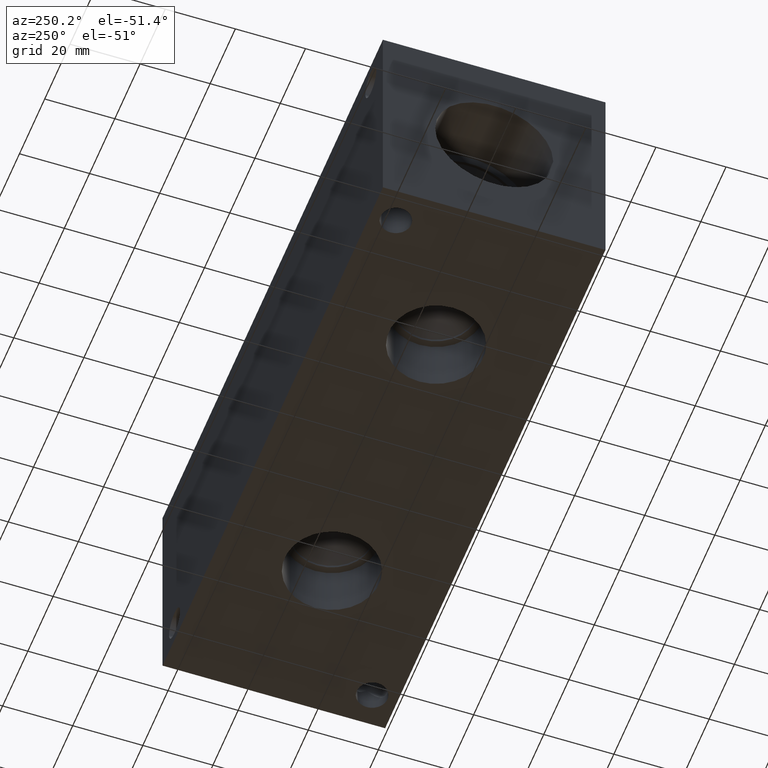
[diagram: clean part render]
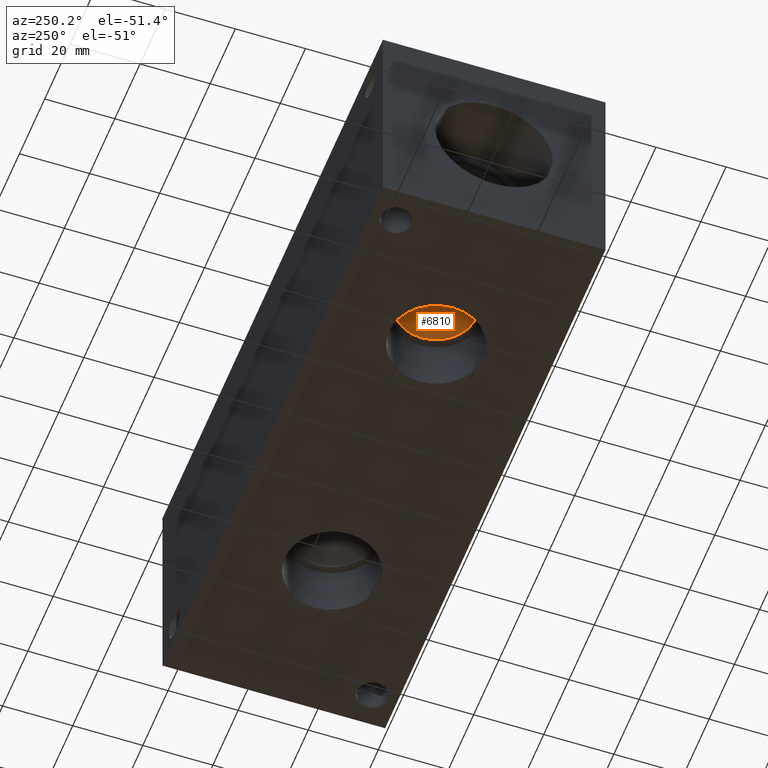
[diagram: same view with one face highlighted and labeled with its STEP entity id]
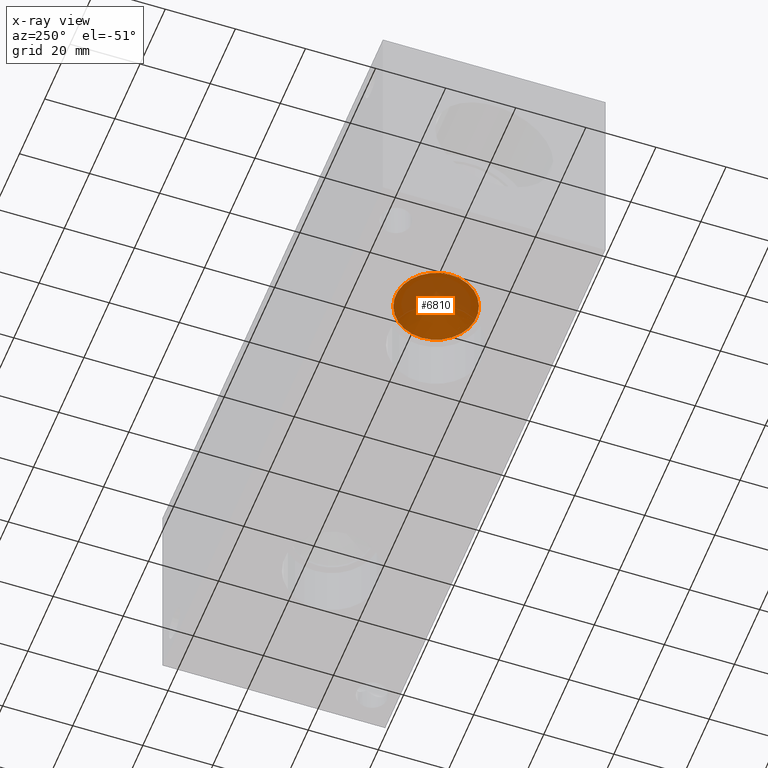
[diagram: x-ray of the same camera — body ghosted, the highlighted face saturated]
A machine part, auxiliary view. The second image highlights one B-rep face of the part: STEP entity #6810.
The next image is the same camera in x-ray: the body ghosted, the highlighted face saturated — about 40% of this face is hidden behind the body in this view.
In plain terms, the highlighted conical surface has half-angle 60 deg.
Its self-contained STEP definition (entity closure, byte-faithful):
#42=CONICAL_SURFACE('',#7092,5.7531,1.0471975511966);
#56=CIRCLE('',#7093,11.5062);
#57=CIRCLE('',#7094,11.5062);
#688=FACE_OUTER_BOUND('',#1062,.T.);
#1062=EDGE_LOOP('',(#5933,#5934,#5935,#5936));
#1788=LINE('',#11340,#2494);
#2494=VECTOR('',#8322,5.7531);
#3262=VERTEX_POINT('',#11336);
#3263=VERTEX_POINT('',#11337);
#3264=VERTEX_POINT('',#11339);
#4168=EDGE_CURVE('',#3262,#3263,#56,.T.);
#4169=EDGE_CURVE('',#3263,#3264,#1788,.T.);
#4170=EDGE_CURVE('',#3263,#3262,#57,.T.);
#5933=ORIENTED_EDGE('',*,*,#4168,.T.);
#5934=ORIENTED_EDGE('',*,*,#4169,.T.);
#5935=ORIENTED_EDGE('',*,*,#4169,.F.);
#5936=ORIENTED_EDGE('',*,*,#4170,.T.);
#6810=ADVANCED_FACE('',(#688),#42,.F.);
#7092=AXIS2_PLACEMENT_3D('',#11335,#8318,#8319);
#7093=AXIS2_PLACEMENT_3D('',#11338,#8320,#8321);
#7094=AXIS2_PLACEMENT_3D('',#11341,#8323,#8324);
#8318=DIRECTION('center_axis',(0.,0.,-1.));
#8319=DIRECTION('ref_axis',(1.,0.,0.));
#8320=DIRECTION('center_axis',(0.,0.,-1.));
#8321=DIRECTION('ref_axis',(1.,0.,0.));
#8322=DIRECTION('',(0.866025403784439,-1.06057523872491E-16,0.5));
#8323=DIRECTION('center_axis',(0.,0.,-1.));
#8324=DIRECTION('ref_axis',(1.,0.,0.));
#11335=CARTESIAN_POINT('Origin',(46.0248,31.75,19.8354638336748));
#11336=CARTESIAN_POINT('',(57.531,31.75,16.51391));
#11337=CARTESIAN_POINT('',(34.5186,31.75,16.51391));
#11338=CARTESIAN_POINT('Origin',(46.0248,31.75,16.51391));
#11339=CARTESIAN_POINT('',(46.0248,31.75,23.1570176673497));
#11340=CARTESIAN_POINT('',(40.2717,31.75,19.8354638336748));
#11341=CARTESIAN_POINT('Origin',(46.0248,31.75,16.51391));